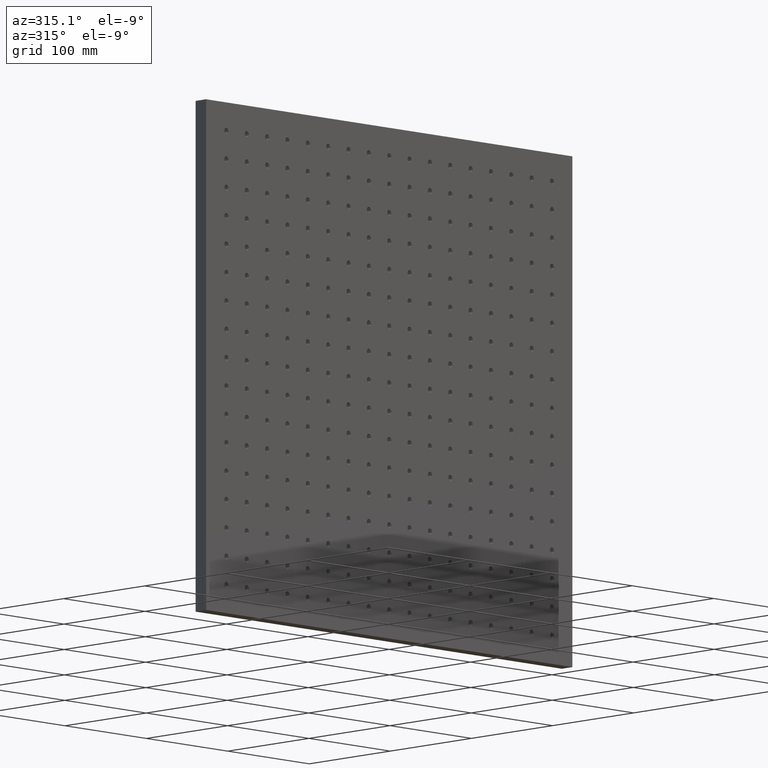
[diagram: clean part render]
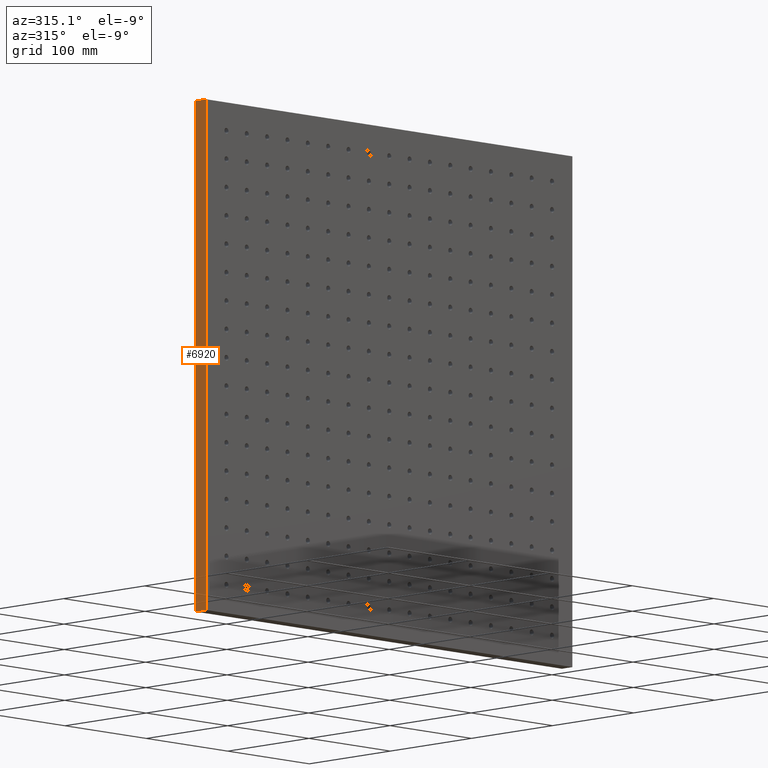
[diagram: same view with one face highlighted and labeled with its STEP entity id]
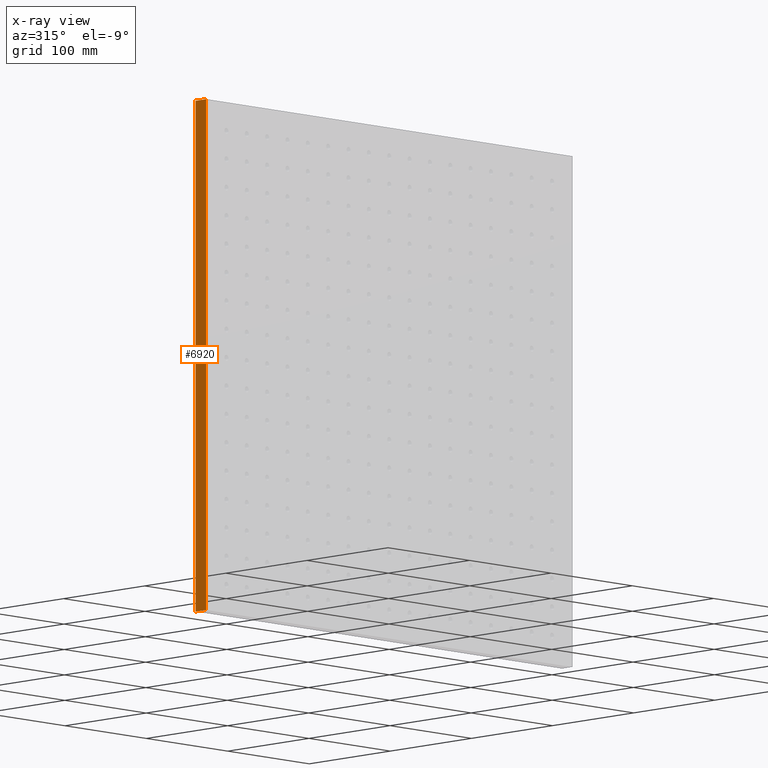
[diagram: x-ray of the same camera — body ghosted, the highlighted face saturated]
A machine part, auxiliary view. The second image highlights one B-rep face of the part: STEP entity #6920.
The next image is the same camera in x-ray: the body ghosted, the highlighted face saturated — about 0% of this face is hidden behind the body in this view.
In plain terms, the highlighted planar face has unit normal (1, 0, -0).
Its self-contained STEP definition (entity closure, byte-faithful):
#558 = VERTEX_POINT ( 'NONE', #6028 ) ;
#737 = CARTESIAN_POINT ( 'NONE',  ( -225.0000000000000000, 13.00000000000000000, -224.9999999999999716 ) ) ;
#2004 = LINE ( 'NONE', #7258, #17164 ) ;
#2170 = VECTOR ( 'NONE', #11258, 1000.000000000000000 ) ;
#3514 = ORIENTED_EDGE ( 'NONE', *, *, #11672, .F. ) ;
#3649 = VERTEX_POINT ( 'NONE', #7425 ) ;
#3685 = CARTESIAN_POINT ( 'NONE',  ( -224.9999999999999432, 13.00000000000000000, 225.0000000000000284 ) ) ;
#3821 = EDGE_LOOP ( 'NONE', ( #8701, #3514, #4006, #7261 ) ) ;
#4006 = ORIENTED_EDGE ( 'NONE', *, *, #9149, .F. ) ;
#5005 = CARTESIAN_POINT ( 'NONE',  ( -225.0000000000000000, 13.00000000000000000, -224.9999999999999716 ) ) ;
#5591 = VERTEX_POINT ( 'NONE', #7507 ) ;
#6028 = CARTESIAN_POINT ( 'NONE',  ( -225.0000000000000000, 0.000000000000000000, -224.9999999999999716 ) ) ;
#6768 = DIRECTION ( 'NONE',  ( -0.000000000000000000, -1.000000000000000000, -0.000000000000000000 ) ) ;
#6920 = ADVANCED_FACE ( 'NONE', ( #14170 ), #9047, .F. ) ;
#7169 = CARTESIAN_POINT ( 'NONE',  ( -225.0000000000000000, 13.00000000000000000, -224.9999999999999716 ) ) ;
#7258 = CARTESIAN_POINT ( 'NONE',  ( -225.0000000000000000, 13.00000000000000000, -224.9999999999999716 ) ) ;
#7261 = ORIENTED_EDGE ( 'NONE', *, *, #15321, .T. ) ;
#7405 = DIRECTION ( 'NONE',  ( 1.000000000000000000, 0.000000000000000000, -1.233581138472396211E-16 ) ) ;
#7425 = CARTESIAN_POINT ( 'NONE',  ( -224.9999999999999432, 13.00000000000000000, 225.0000000000000284 ) ) ;
#7507 = CARTESIAN_POINT ( 'NONE',  ( -224.9999999999999432, 0.000000000000000000, 225.0000000000000284 ) ) ;
#8701 = ORIENTED_EDGE ( 'NONE', *, *, #18123, .T. ) ;
#9047 = PLANE ( 'NONE',  #9597 ) ;
#9149 = EDGE_CURVE ( 'NONE', #14785, #3649, #18971, .T. ) ;
#9384 = VECTOR ( 'NONE', #12316, 1000.000000000000000 ) ;
#9402 = LINE ( 'NONE', #12678, #2170 ) ;
#9597 = AXIS2_PLACEMENT_3D ( 'NONE', #737, #7405, #15482 ) ;
#11258 = DIRECTION ( 'NONE',  ( 1.233581138472396211E-16, 0.000000000000000000, 1.000000000000000000 ) ) ;
#11672 = EDGE_CURVE ( 'NONE', #3649, #5591, #18552, .T. ) ;
#12316 = DIRECTION ( 'NONE',  ( 1.233581138472396211E-16, 0.000000000000000000, 1.000000000000000000 ) ) ;
#12678 = CARTESIAN_POINT ( 'NONE',  ( -225.0000000000000000, 0.000000000000000000, -224.9999999999999716 ) ) ;
#13689 = DIRECTION ( 'NONE',  ( -0.000000000000000000, -1.000000000000000000, -0.000000000000000000 ) ) ;
#14170 = FACE_OUTER_BOUND ( 'NONE', #3821, .T. ) ;
#14785 = VERTEX_POINT ( 'NONE', #5005 ) ;
#15321 = EDGE_CURVE ( 'NONE', #14785, #558, #2004, .T. ) ;
#15482 = DIRECTION ( 'NONE',  ( -1.233581138472396211E-16, 0.000000000000000000, -1.000000000000000000 ) ) ;
#16974 = VECTOR ( 'NONE', #6768, 1000.000000000000000 ) ;
#17164 = VECTOR ( 'NONE', #13689, 1000.000000000000000 ) ;
#18123 = EDGE_CURVE ( 'NONE', #558, #5591, #9402, .T. ) ;
#18552 = LINE ( 'NONE', #3685, #16974 ) ;
#18971 = LINE ( 'NONE', #7169, #9384 ) ;